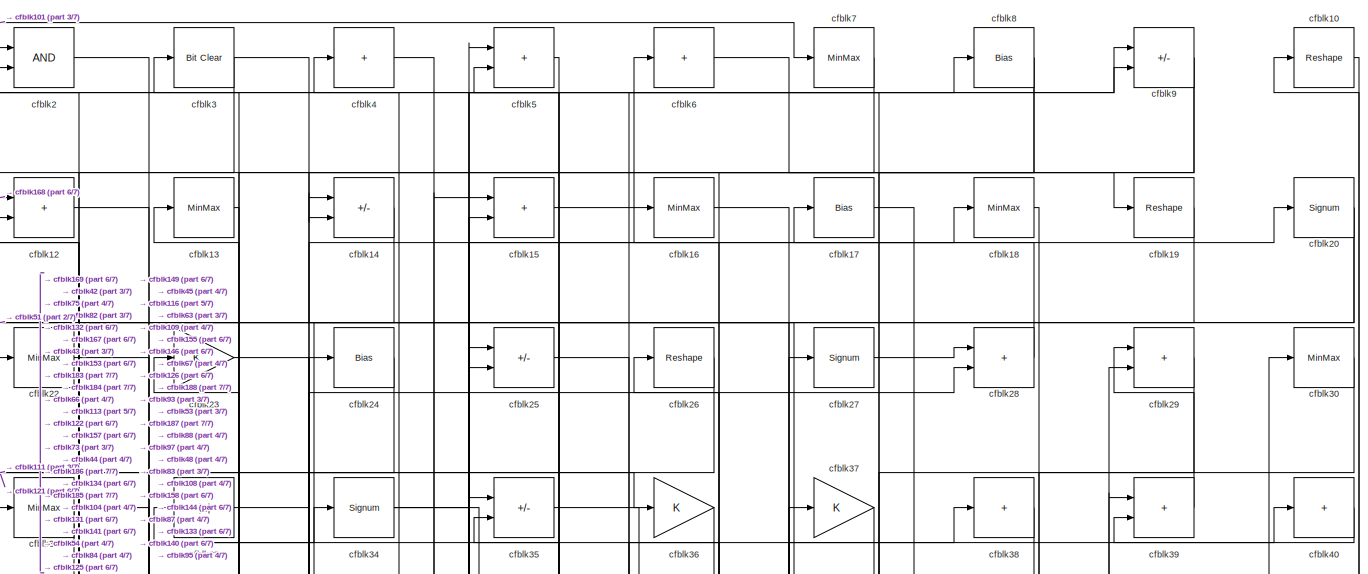
[diagram: root canvas - part 1/7, full width, top band]
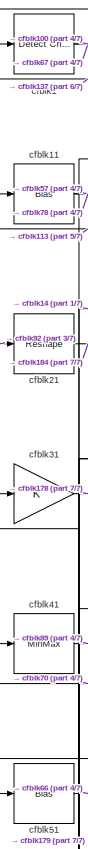
[diagram: root canvas - part 2/7, top left region]
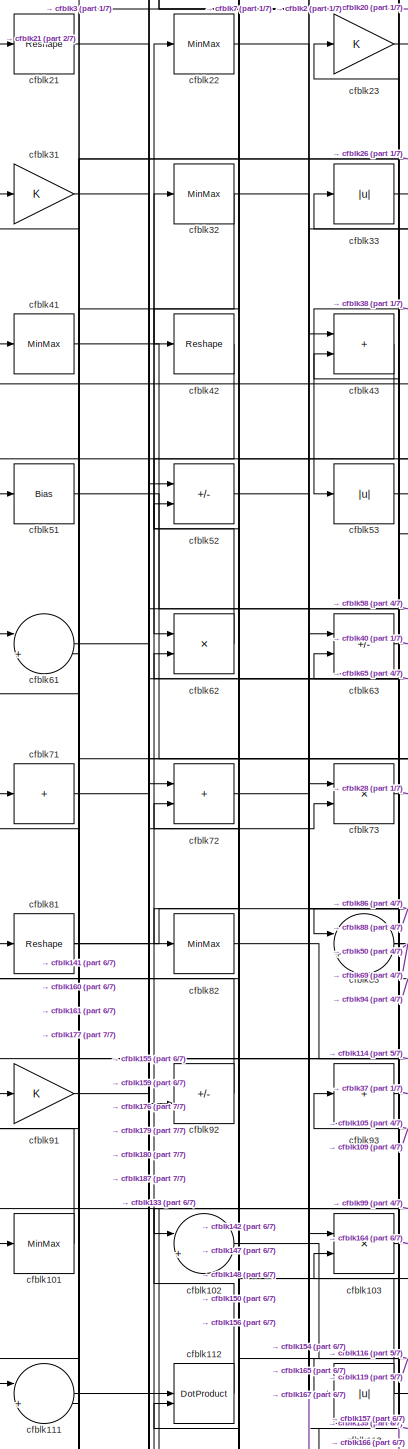
[diagram: root canvas - part 3/7, middle left region]
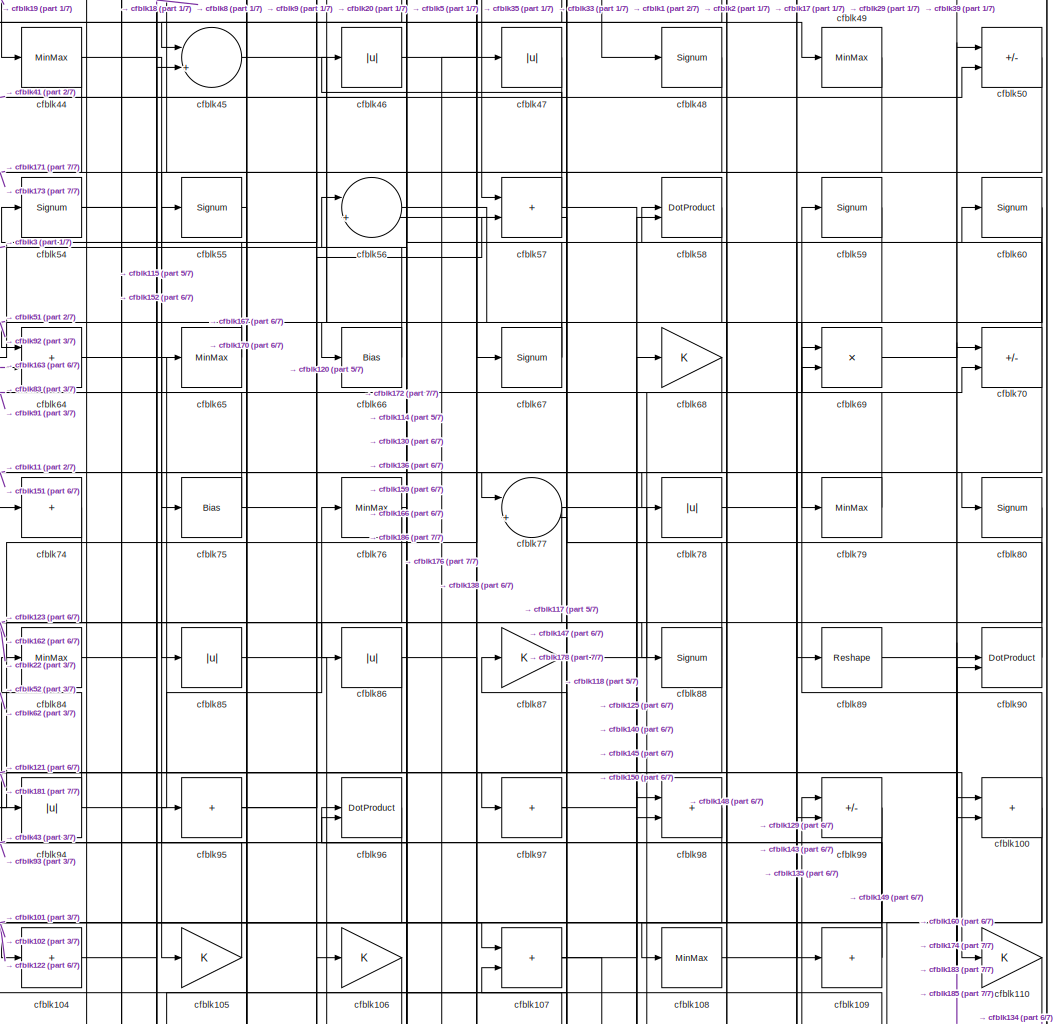
[diagram: root canvas - part 4/7, central region]
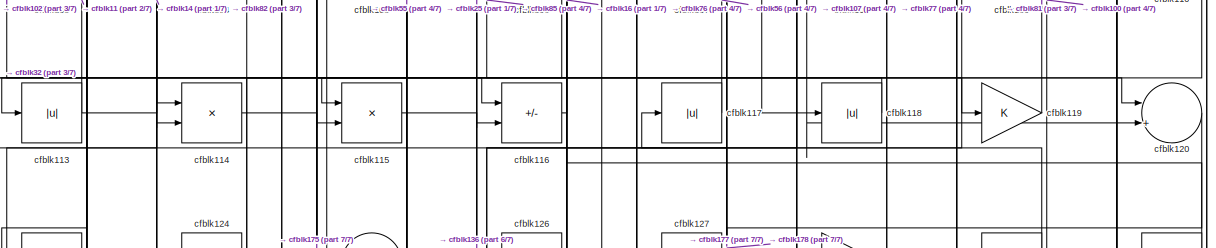
[diagram: root canvas - part 5/7, full width, middle band]
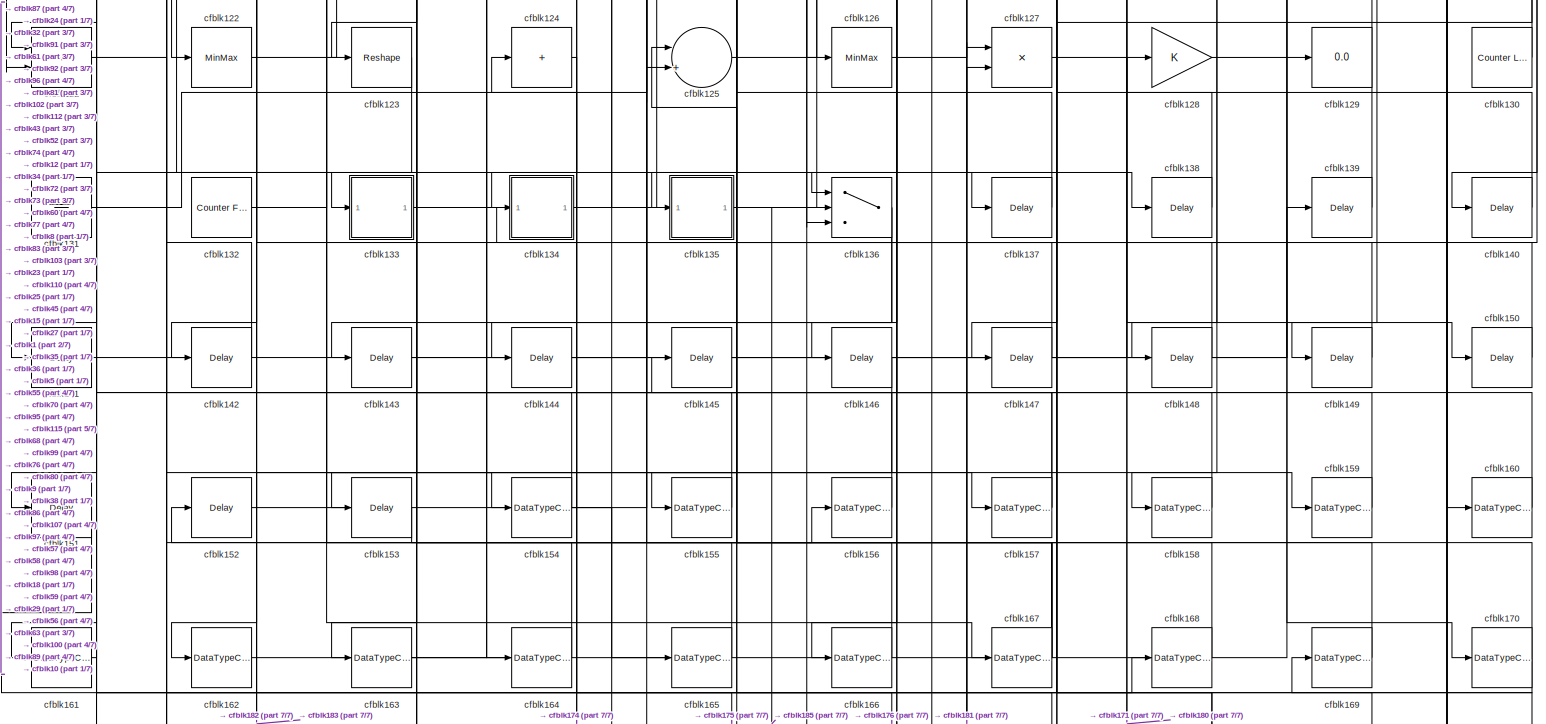
[diagram: root canvas - part 6/7, full width, bottom band]
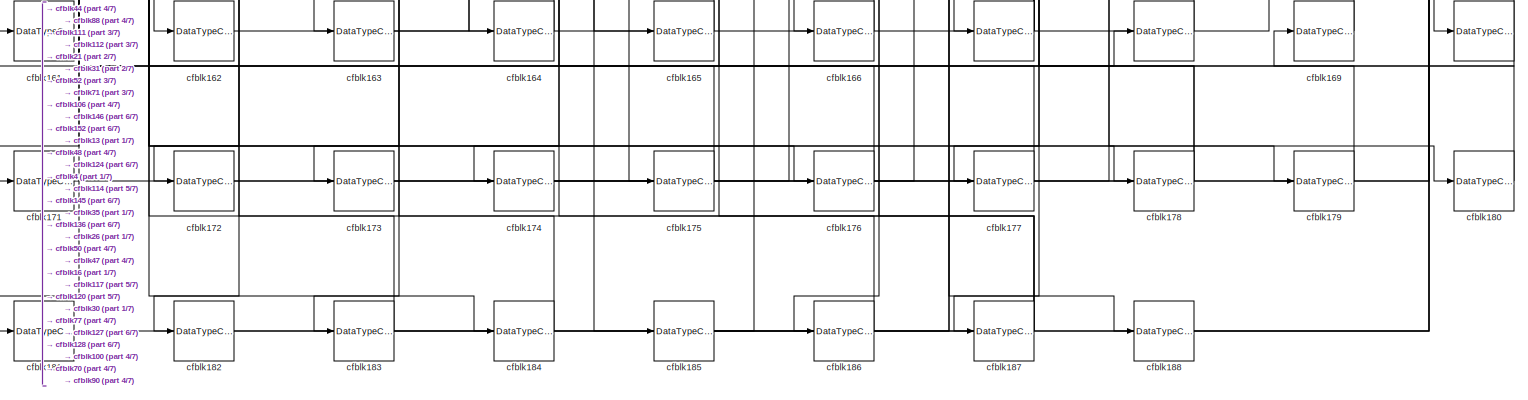
[diagram: root canvas - part 7/7, full width, bottom band]
MODEL slx_3adcf34a40bd
KIND model
CONFIG AbsTol = auto
CONFIG EnableMultiTasking = off
CONFIG FixedStep = auto
CONFIG MaxStep = auto
CONFIG MinStep = auto
CONFIG RelTol = 1e-3
CONFIG SampleTimeConstraint = Unconstrained
CONFIG SolverName = VariableStepAuto
CONFIG StartTime = 0.0
CONFIG StopTime = 10.0
BLOCK [Reference] cfblk1  REF=simulink/Logic and Bit
Operations/Detect
Change
  LibrarySourceBlock = hdlsllib/Logic and Bit\nOperations/Detect\nChange
  SourceBlock = simulink/Logic and Bit\nOperations/Detect\nChange
  SourceType = Detect Change
BLOCK [Reshape] cfblk10
BLOCK [Sum] cfblk100
  IconShape = rectangular
BLOCK [MinMax] cfblk101
BLOCK [Sum] cfblk102
  Inputs = |++
BLOCK [Product] cfblk103
  Inputs = */
  RndMeth = Zero
  SaturateOnIntegerOverflow = on
BLOCK [Sum] cfblk104
  IconShape = rectangular
  Inputs = +
BLOCK [Gain] cfblk105
BLOCK [Gain] cfblk106
BLOCK [Sum] cfblk107
  IconShape = rectangular
BLOCK [MinMax] cfblk108
BLOCK [Sum] cfblk109
  IconShape = rectangular
  Inputs = +
BLOCK [Bias] cfblk11
  Bias = 0.0
  SaturateOnIntegerOverflow = off
BLOCK [Gain] cfblk110
BLOCK [Sum] cfblk111
  Inputs = |++
BLOCK [DotProduct] cfblk112
  OutDataTypeStr = Inherit: Inherit via internal rule
BLOCK [Abs] cfblk113
  SaturateOnIntegerOverflow = off
BLOCK [Product] cfblk114
  Inputs = */
  RndMeth = Zero
  SaturateOnIntegerOverflow = on
BLOCK [Product] cfblk115
  Inputs = */
  RndMeth = Zero
  SaturateOnIntegerOverflow = on
BLOCK [Sum] cfblk116
  IconShape = rectangular
  Inputs = +-
BLOCK [Abs] cfblk117
  SaturateOnIntegerOverflow = off
BLOCK [Abs] cfblk118
  SaturateOnIntegerOverflow = off
BLOCK [Gain] cfblk119
BLOCK [Sum] cfblk12
  IconShape = rectangular
BLOCK [Sum] cfblk120
  Inputs = |++
BLOCK [Sum] cfblk121
  IconShape = rectangular
BLOCK [MinMax] cfblk122
BLOCK [Reshape] cfblk123
BLOCK [Sum] cfblk124
  IconShape = rectangular
  Inputs = +
BLOCK [Sum] cfblk125
  Inputs = |++
BLOCK [MinMax] cfblk126
BLOCK [Product] cfblk127
  Inputs = */
  RndMeth = Zero
  SaturateOnIntegerOverflow = on
BLOCK [Gain] cfblk128
BLOCK [Display] cfblk129
  Decimation = 1
BLOCK [MinMax] cfblk13
BLOCK [Reference] cfblk130  REF=hdlsllib/Sources/Counter
Limited
  SourceBlock = hdlsllib/Sources/Counter\nLimited
  SourceType = Counter Limited
BLOCK [Ground] cfblk131
BLOCK [Reference] cfblk132  REF=hdlsllib/Sources/Counter
Free-Running
  SourceBlock = hdlsllib/Sources/Counter\nFree-Running
  SourceType = Counter Free-Running
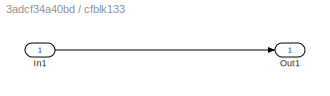
BLOCK [SubSystem] cfblk133
  LibrarySourceBlock = hdlsllib/Ports &\nSubsystems/Subsystem
BLOCK [Inport] cfblk133/In1
BLOCK [Outport] cfblk133/Out1
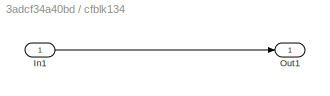
BLOCK [SubSystem] cfblk134
  LibrarySourceBlock = hdlsllib/Ports &\nSubsystems/Subsystem
BLOCK [Inport] cfblk134/In1
BLOCK [Outport] cfblk134/Out1
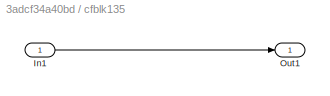
BLOCK [SubSystem] cfblk135
  LibrarySourceBlock = hdlsllib/Ports &\nSubsystems/Subsystem
BLOCK [Inport] cfblk135/In1
BLOCK [Outport] cfblk135/Out1
BLOCK [Switch] cfblk136
  InputSameDT = off
  SaturateOnIntegerOverflow = off
BLOCK [Delay] cfblk137
  InputPortMap = u0
  SampleTime = 1
BLOCK [Delay] cfblk138
  InputPortMap = u0
  SampleTime = 1
BLOCK [Delay] cfblk139
  InputPortMap = u0
  SampleTime = 1
BLOCK [Sum] cfblk14
  IconShape = rectangular
  Inputs = +-
BLOCK [Delay] cfblk140
  InputPortMap = u0
  SampleTime = 1
BLOCK [Delay] cfblk141
  InputPortMap = u0
  SampleTime = 1
BLOCK [Delay] cfblk142
  InputPortMap = u0
  SampleTime = 1
BLOCK [Delay] cfblk143
  InputPortMap = u0
  SampleTime = 1
BLOCK [Delay] cfblk144
  InputPortMap = u0
  SampleTime = 1
BLOCK [Delay] cfblk145
  InputPortMap = u0
  SampleTime = 1
BLOCK [Delay] cfblk146
  InputPortMap = u0
  SampleTime = 1
BLOCK [Delay] cfblk147
  InputPortMap = u0
  SampleTime = 1
BLOCK [Delay] cfblk148
  InputPortMap = u0
  SampleTime = 1
BLOCK [Delay] cfblk149
  InputPortMap = u0
  SampleTime = 1
BLOCK [Sum] cfblk15
  IconShape = rectangular
BLOCK [Delay] cfblk150
  InputPortMap = u0
  SampleTime = 1
BLOCK [Delay] cfblk151
  InputPortMap = u0
  SampleTime = 1
BLOCK [Delay] cfblk152
  InputPortMap = u0
  SampleTime = 1
BLOCK [Delay] cfblk153
  InputPortMap = u0
  SampleTime = 1
BLOCK [DataTypeConversion] cfblk154
  RndMeth = Floor
  SaturateOnIntegerOverflow = off
BLOCK [DataTypeConversion] cfblk155
  OutDataTypeStr = uint8
  RndMeth = Floor
  SaturateOnIntegerOverflow = off
BLOCK [DataTypeConversion] cfblk156
  OutDataTypeStr = uint8
  RndMeth = Floor
  SaturateOnIntegerOverflow = off
BLOCK [DataTypeConversion] cfblk157
  RndMeth = Floor
  SaturateOnIntegerOverflow = off
BLOCK [DataTypeConversion] cfblk158
  OutDataTypeStr = uint8
  RndMeth = Floor
  SaturateOnIntegerOverflow = off
BLOCK [DataTypeConversion] cfblk159
  OutDataTypeStr = uint8
  RndMeth = Floor
  SaturateOnIntegerOverflow = off
BLOCK [MinMax] cfblk16
BLOCK [DataTypeConversion] cfblk160
  OutDataTypeStr = uint8
  RndMeth = Floor
  SaturateOnIntegerOverflow = off
BLOCK [DataTypeConversion] cfblk161
  OutDataTypeStr = uint8
  RndMeth = Floor
  SaturateOnIntegerOverflow = off
BLOCK [DataTypeConversion] cfblk162
  OutDataTypeStr = uint8
  RndMeth = Floor
  SaturateOnIntegerOverflow = off
BLOCK [DataTypeConversion] cfblk163
  OutDataTypeStr = uint8
  RndMeth = Floor
  SaturateOnIntegerOverflow = off
BLOCK [DataTypeConversion] cfblk164
  OutDataTypeStr = uint8
  RndMeth = Floor
  SaturateOnIntegerOverflow = off
BLOCK [DataTypeConversion] cfblk165
  OutDataTypeStr = uint8
  RndMeth = Floor
  SaturateOnIntegerOverflow = off
BLOCK [DataTypeConversion] cfblk166
  OutDataTypeStr = uint8
  RndMeth = Floor
  SaturateOnIntegerOverflow = off
BLOCK [DataTypeConversion] cfblk167
  RndMeth = Floor
  SaturateOnIntegerOverflow = off
BLOCK [DataTypeConversion] cfblk168
  OutDataTypeStr = uint8
  RndMeth = Floor
  SaturateOnIntegerOverflow = off
BLOCK [DataTypeConversion] cfblk169
  OutDataTypeStr = uint8
  RndMeth = Floor
  SaturateOnIntegerOverflow = off
BLOCK [Bias] cfblk17
  Bias = 0.0
  SaturateOnIntegerOverflow = off
BLOCK [DataTypeConversion] cfblk170
  RndMeth = Floor
  SaturateOnIntegerOverflow = off
BLOCK [DataTypeConversion] cfblk171
  OutDataTypeStr = uint8
  RndMeth = Floor
  SaturateOnIntegerOverflow = off
BLOCK [DataTypeConversion] cfblk172
  OutDataTypeStr = uint8
  RndMeth = Floor
  SaturateOnIntegerOverflow = off
BLOCK [DataTypeConversion] cfblk173
  OutDataTypeStr = uint8
  RndMeth = Floor
  SaturateOnIntegerOverflow = off
BLOCK [DataTypeConversion] cfblk174
  OutDataTypeStr = uint8
  RndMeth = Floor
  SaturateOnIntegerOverflow = off
BLOCK [DataTypeConversion] cfblk175
  OutDataTypeStr = uint8
  RndMeth = Floor
  SaturateOnIntegerOverflow = off
BLOCK [DataTypeConversion] cfblk176
  RndMeth = Floor
  SaturateOnIntegerOverflow = off
BLOCK [DataTypeConversion] cfblk177
  OutDataTypeStr = uint8
  RndMeth = Floor
  SaturateOnIntegerOverflow = off
BLOCK [DataTypeConversion] cfblk178
  RndMeth = Floor
  SaturateOnIntegerOverflow = off
BLOCK [DataTypeConversion] cfblk179
  OutDataTypeStr = uint8
  RndMeth = Floor
  SaturateOnIntegerOverflow = off
BLOCK [MinMax] cfblk18
BLOCK [DataTypeConversion] cfblk180
  OutDataTypeStr = uint8
  RndMeth = Floor
  SaturateOnIntegerOverflow = off
BLOCK [DataTypeConversion] cfblk181
  OutDataTypeStr = uint8
  RndMeth = Floor
  SaturateOnIntegerOverflow = off
BLOCK [DataTypeConversion] cfblk182
  OutDataTypeStr = uint8
  RndMeth = Floor
  SaturateOnIntegerOverflow = off
BLOCK [DataTypeConversion] cfblk183
  RndMeth = Floor
  SaturateOnIntegerOverflow = off
BLOCK [DataTypeConversion] cfblk184
  OutDataTypeStr = uint8
  RndMeth = Floor
  SaturateOnIntegerOverflow = off
BLOCK [DataTypeConversion] cfblk185
  RndMeth = Floor
  SaturateOnIntegerOverflow = off
BLOCK [DataTypeConversion] cfblk186
  OutDataTypeStr = uint8
  RndMeth = Floor
  SaturateOnIntegerOverflow = off
BLOCK [DataTypeConversion] cfblk187
  RndMeth = Floor
  SaturateOnIntegerOverflow = off
BLOCK [DataTypeConversion] cfblk188
  OutDataTypeStr = uint8
  RndMeth = Floor
  SaturateOnIntegerOverflow = off
BLOCK [Reshape] cfblk19
BLOCK [Logic] cfblk2
  AllPortsSameDT = off
  OutDataTypeStr = boolean
BLOCK [Signum] cfblk20
BLOCK [Reshape] cfblk21
BLOCK [MinMax] cfblk22
BLOCK [Gain] cfblk23
BLOCK [Bias] cfblk24
  Bias = 0.0
  SaturateOnIntegerOverflow = off
BLOCK [Sum] cfblk25
  IconShape = rectangular
  Inputs = +-
BLOCK [Reshape] cfblk26
BLOCK [Signum] cfblk27
BLOCK [Sum] cfblk28
  IconShape = rectangular
BLOCK [Sum] cfblk29
  IconShape = rectangular
BLOCK [Reference] cfblk3  REF=simulink/Logic and Bit
Operations/Bit Clear
  LibrarySourceBlock = hdlsllib/Logic and Bit\nOperations/Bit Clear
  SourceBlock = simulink/Logic and Bit\nOperations/Bit Clear
  SourceType = Bit Clear
BLOCK [MinMax] cfblk30
BLOCK [Gain] cfblk31
BLOCK [MinMax] cfblk32
BLOCK [Abs] cfblk33
  SaturateOnIntegerOverflow = off
BLOCK [Signum] cfblk34
BLOCK [Sum] cfblk35
  IconShape = rectangular
  Inputs = +-
BLOCK [Gain] cfblk36
BLOCK [Gain] cfblk37
BLOCK [Sum] cfblk38
  IconShape = rectangular
  Inputs = +
BLOCK [Sum] cfblk39
  IconShape = rectangular
BLOCK [Sum] cfblk4
  IconShape = rectangular
  Inputs = +
BLOCK [Sum] cfblk40
  IconShape = rectangular
  Inputs = +
BLOCK [MinMax] cfblk41
BLOCK [Reshape] cfblk42
BLOCK [Sum] cfblk43
  IconShape = rectangular
BLOCK [MinMax] cfblk44
BLOCK [Sum] cfblk45
  Inputs = |++
BLOCK [Abs] cfblk46
  SaturateOnIntegerOverflow = off
BLOCK [Abs] cfblk47
  SaturateOnIntegerOverflow = off
BLOCK [Signum] cfblk48
BLOCK [MinMax] cfblk49
BLOCK [Sum] cfblk5
  IconShape = rectangular
BLOCK [Sum] cfblk50
  IconShape = rectangular
  Inputs = +-
BLOCK [Bias] cfblk51
  Bias = 0.0
  SaturateOnIntegerOverflow = off
BLOCK [Sum] cfblk52
  IconShape = rectangular
  Inputs = +-
BLOCK [Abs] cfblk53
  SaturateOnIntegerOverflow = off
BLOCK [Signum] cfblk54
BLOCK [Signum] cfblk55
BLOCK [Sum] cfblk56
  Inputs = |++
BLOCK [Sum] cfblk57
  IconShape = rectangular
BLOCK [DotProduct] cfblk58
  OutDataTypeStr = Inherit: Inherit via internal rule
BLOCK [Signum] cfblk59
BLOCK [Sum] cfblk6
  IconShape = rectangular
  Inputs = +
BLOCK [Signum] cfblk60
BLOCK [Sum] cfblk61
  Inputs = |++
BLOCK [Product] cfblk62
  Inputs = */
  RndMeth = Zero
  SaturateOnIntegerOverflow = on
BLOCK [Sum] cfblk63
  IconShape = rectangular
  Inputs = +-
BLOCK [Sum] cfblk64
  IconShape = rectangular
BLOCK [MinMax] cfblk65
BLOCK [Bias] cfblk66
  Bias = 0.0
  SaturateOnIntegerOverflow = off
BLOCK [Signum] cfblk67
BLOCK [Gain] cfblk68
BLOCK [Product] cfblk69
  Inputs = */
  RndMeth = Zero
  SaturateOnIntegerOverflow = on
BLOCK [MinMax] cfblk7
BLOCK [Sum] cfblk70
  IconShape = rectangular
  Inputs = +-
BLOCK [Sum] cfblk71
  IconShape = rectangular
  Inputs = +
BLOCK [Sum] cfblk72
  IconShape = rectangular
BLOCK [Product] cfblk73
  Inputs = */
  RndMeth = Zero
  SaturateOnIntegerOverflow = on
BLOCK [Sum] cfblk74
  IconShape = rectangular
  Inputs = +
BLOCK [Bias] cfblk75
  Bias = 0.0
  SaturateOnIntegerOverflow = off
BLOCK [MinMax] cfblk76
BLOCK [Sum] cfblk77
  Inputs = |++
BLOCK [Abs] cfblk78
  SaturateOnIntegerOverflow = off
BLOCK [MinMax] cfblk79
BLOCK [Bias] cfblk8
  Bias = 0.0
  SaturateOnIntegerOverflow = off
BLOCK [Signum] cfblk80
BLOCK [Reshape] cfblk81
BLOCK [MinMax] cfblk82
BLOCK [Sum] cfblk83
  Inputs = |++
BLOCK [MinMax] cfblk84
BLOCK [Abs] cfblk85
  SaturateOnIntegerOverflow = off
BLOCK [Abs] cfblk86
  SaturateOnIntegerOverflow = off
BLOCK [Gain] cfblk87
BLOCK [Signum] cfblk88
BLOCK [Reshape] cfblk89
BLOCK [Sum] cfblk9
  IconShape = rectangular
  Inputs = +-
BLOCK [DotProduct] cfblk90
  OutDataTypeStr = Inherit: Inherit via internal rule
BLOCK [Gain] cfblk91
BLOCK [Sum] cfblk92
  IconShape = rectangular
  Inputs = +-
BLOCK [Sum] cfblk93
  IconShape = rectangular
  Inputs = +
BLOCK [Abs] cfblk94
  SaturateOnIntegerOverflow = off
BLOCK [Sum] cfblk95
  IconShape = rectangular
  Inputs = +
BLOCK [DotProduct] cfblk96
  OutDataTypeStr = Inherit: Inherit via internal rule
BLOCK [Sum] cfblk97
  IconShape = rectangular
  Inputs = +
BLOCK [Sum] cfblk98
  IconShape = rectangular
BLOCK [Sum] cfblk99
  IconShape = rectangular
  Inputs = +-
NET cfblk100:1 -> cfblk115:2, cfblk149:1, cfblk59:1
LINE cfblk101:1 -> cfblk7:1
LINE cfblk102:1 -> cfblk116:1
LINE cfblk103:1 -> cfblk164:1
LINE cfblk104:1 -> cfblk18:1
LINE cfblk105:1 -> cfblk93:1
LINE cfblk106:1 -> cfblk172:1
NET cfblk107:1 -> cfblk118:1, cfblk87:1, cfblk98:2
LINE cfblk108:1 -> cfblk60:1
NET cfblk109:1 -> cfblk43:2, cfblk84:1
LINE cfblk10:1 -> cfblk140:1
LINE cfblk110:1 -> cfblk134:1
LINE cfblk111:1 -> cfblk179:1
LINE cfblk112:1 -> cfblk22:1
NET cfblk113:1 -> cfblk11:1, cfblk14:1
LINE cfblk114:1 -> cfblk175:1
LINE cfblk115:1 -> cfblk136:3
LINE cfblk116:1 -> cfblk16:1
LINE cfblk117:1 -> cfblk56:1
LINE cfblk118:1 -> cfblk113:1
LINE cfblk119:1 -> cfblk81:1
NET cfblk11:1 -> cfblk57:1, cfblk78:1
LINE cfblk120:1 -> cfblk177:1
LINE cfblk121:1 -> cfblk137:1
LINE cfblk122:1 -> cfblk24:1
LINE cfblk123:1 -> cfblk161:1
LINE cfblk124:1 -> cfblk174:1
LINE cfblk125:1 -> cfblk68:1
LINE cfblk126:1 -> cfblk38:1
LINE cfblk127:1 -> cfblk180:1
LINE cfblk128:1 -> cfblk170:1
LINE cfblk12:1 -> cfblk167:1
LINE cfblk130:1 -> cfblk96:1
LINE cfblk131:1 -> cfblk25:1
LINE cfblk132:1 -> cfblk34:1
LINE cfblk133/In1:1 -> cfblk133/Out1:1
LINE cfblk133:1 -> cfblk10:1
LINE cfblk134/In1:1 -> cfblk134/Out1:1
NET cfblk134:1 -> cfblk15:1, cfblk27:1
LINE cfblk135/In1:1 -> cfblk135/Out1:1
LINE cfblk135:1 -> cfblk99:1
NET cfblk136:1 -> cfblk143:1, cfblk144:1
LINE cfblk137:1 -> cfblk1:1
LINE cfblk138:1 -> cfblk107:2
LINE cfblk139:1 -> cfblk63:1
LINE cfblk13:1 -> cfblk183:1
LINE cfblk140:1 -> cfblk98:1
LINE cfblk141:1 -> cfblk15:2
LINE cfblk142:1 -> cfblk92:1
LINE cfblk143:1 -> cfblk99:2
LINE cfblk144:1 -> cfblk29:2
LINE cfblk145:1 -> cfblk58:2
LINE cfblk146:1 -> cfblk182:1
LINE cfblk147:1 -> cfblk102:2
LINE cfblk148:1 -> cfblk112:2
LINE cfblk149:1 -> cfblk5:2
LINE cfblk14:1 -> cfblk51:1
LINE cfblk150:1 -> cfblk52:2
LINE cfblk151:1 -> cfblk168:1
LINE cfblk152:1 -> cfblk45:2
LINE cfblk153:1 -> cfblk156:1
NET cfblk154:1 -> cfblk165:1, cfblk91:1
LINE cfblk155:1 -> cfblk72:1
LINE cfblk156:1 -> cfblk72:2
NET cfblk157:1 -> cfblk5:1, cfblk83:2
LINE cfblk158:1 -> cfblk23:1
LINE cfblk159:1 -> cfblk96:2
LINE cfblk15:1 -> cfblk6:1
LINE cfblk160:1 -> cfblk61:1
LINE cfblk161:1 -> cfblk61:2
LINE cfblk162:1 -> cfblk139:1
LINE cfblk163:1 -> cfblk74:1
LINE cfblk164:1 -> cfblk63:2
LINE cfblk165:1 -> cfblk103:1
LINE cfblk166:1 -> cfblk103:2
NET cfblk167:1 -> cfblk125:1, cfblk35:1, cfblk73:1, cfblk95:1
LINE cfblk168:1 -> cfblk12:1
LINE cfblk169:1 -> cfblk12:2
LINE cfblk16:1 -> cfblk188:1
NET cfblk170:1 -> cfblk169:1, cfblk55:1
LINE cfblk171:1 -> cfblk128:1
LINE cfblk172:1 -> cfblk90:1
LINE cfblk173:1 -> cfblk106:1
LINE cfblk174:1 -> cfblk90:2
LINE cfblk175:1 -> cfblk124:1
NET cfblk176:1 -> cfblk145:1, cfblk47:1
LINE cfblk177:1 -> cfblk71:1
NET cfblk178:1 -> cfblk117:1, cfblk77:2
LINE cfblk179:1 -> cfblk31:1
LINE cfblk17:1 -> cfblk48:1
LINE cfblk180:1 -> cfblk112:1
LINE cfblk181:1 -> cfblk127:1
LINE cfblk182:1 -> cfblk127:2
NET cfblk183:1 -> cfblk152:1, cfblk70:1
LINE cfblk184:1 -> cfblk13:1
NET cfblk185:1 -> cfblk100:1, cfblk136:2
LINE cfblk186:1 -> cfblk4:1
NET cfblk187:1 -> cfblk26:1, cfblk35:2, cfblk52:1
LINE cfblk188:1 -> cfblk30:1
LINE cfblk18:1 -> cfblk158:1
LINE cfblk19:1 -> cfblk44:1
NET cfblk1:1 -> cfblk100:2, cfblk67:1
NET cfblk20:1 -> cfblk42:1, cfblk75:1
LINE cfblk21:1 -> cfblk184:1
LINE cfblk22:1 -> cfblk86:1
LINE cfblk23:1 -> cfblk157:1
LINE cfblk24:1 -> cfblk121:1
LINE cfblk25:1 -> cfblk116:2
LINE cfblk26:1 -> cfblk111:1
LINE cfblk27:1 -> cfblk28:1
LINE cfblk28:1 -> cfblk17:1
LINE cfblk29:1 -> cfblk108:1
LINE cfblk2:1 -> cfblk43:1
LINE cfblk30:1 -> cfblk187:1
LINE cfblk31:1 -> cfblk178:1
NET cfblk32:1 -> cfblk119:1, cfblk141:1
LINE cfblk33:1 -> cfblk36:1
NET cfblk34:1 -> cfblk125:2, cfblk126:1
LINE cfblk35:1 -> cfblk109:1
LINE cfblk36:1 -> cfblk155:1
LINE cfblk37:1 -> cfblk53:1
LINE cfblk38:1 -> cfblk83:1
LINE cfblk39:1 -> cfblk29:1
NET cfblk3:1 -> cfblk111:2, cfblk25:2
LINE cfblk40:1 -> cfblk39:2
LINE cfblk41:1 -> cfblk89:1
LINE cfblk42:1 -> cfblk62:1
LINE cfblk43:1 -> cfblk142:1
NET cfblk44:1 -> cfblk171:1, cfblk85:1
LINE cfblk45:1 -> cfblk79:1
LINE cfblk46:1 -> cfblk49:1
LINE cfblk47:1 -> cfblk105:1
LINE cfblk48:1 -> cfblk173:1
LINE cfblk49:1 -> cfblk77:1
LINE cfblk4:1 -> cfblk185:1
LINE cfblk50:1 -> cfblk186:1
LINE cfblk51:1 -> cfblk66:1
LINE cfblk52:1 -> cfblk88:1
LINE cfblk53:1 -> cfblk20:1
NET cfblk54:1 -> cfblk107:1, cfblk8:1
LINE cfblk55:1 -> cfblk115:1
LINE cfblk56:1 -> cfblk129:1
NET cfblk57:1 -> cfblk150:1, cfblk46:1
LINE cfblk58:1 -> cfblk92:2
LINE cfblk59:1 -> cfblk148:1
LINE cfblk5:1 -> cfblk45:1
NET cfblk60:1 -> cfblk163:1, cfblk64:2
LINE cfblk61:1 -> cfblk159:1
LINE cfblk62:1 -> cfblk32:1
LINE cfblk63:1 -> cfblk40:1
LINE cfblk64:1 -> cfblk110:1
LINE cfblk65:1 -> cfblk54:1
LINE cfblk66:1 -> cfblk3:1
NET cfblk67:1 -> cfblk33:1, cfblk64:1
LINE cfblk68:1 -> cfblk151:1
LINE cfblk69:1 -> cfblk50:1
LINE cfblk6:1 -> cfblk19:1
NET cfblk70:1 -> cfblk135:1, cfblk41:1
LINE cfblk71:1 -> cfblk176:1
LINE cfblk72:1 -> cfblk154:1
LINE cfblk73:1 -> cfblk28:2
LINE cfblk74:1 -> cfblk162:1
NET cfblk75:1 -> cfblk2:1, cfblk80:1
NET cfblk76:1 -> cfblk114:2, cfblk166:1
NET cfblk77:1 -> cfblk120:2, cfblk123:1
LINE cfblk78:1 -> cfblk70:2
LINE cfblk79:1 -> cfblk58:1
LINE cfblk7:1 -> cfblk82:1
LINE cfblk80:1 -> cfblk136:1
NET cfblk81:1 -> cfblk133:1, cfblk73:2
LINE cfblk82:1 -> cfblk114:1
NET cfblk83:1 -> cfblk50:2, cfblk69:1
LINE cfblk84:1 -> cfblk9:1
LINE cfblk85:1 -> cfblk120:1
NET cfblk86:1 -> cfblk138:1, cfblk94:1
NET cfblk87:1 -> cfblk121:2, cfblk39:1
NET cfblk88:1 -> cfblk181:1, cfblk2:2
LINE cfblk89:1 -> cfblk160:1
NET cfblk8:1 -> cfblk14:2, cfblk153:1
LINE cfblk90:1 -> cfblk56:2
LINE cfblk91:1 -> cfblk65:1
LINE cfblk92:1 -> cfblk21:1
LINE cfblk93:1 -> cfblk37:1
NET cfblk94:1 -> cfblk62:2, cfblk76:1
NET cfblk95:1 -> cfblk57:2, cfblk9:2
LINE cfblk96:1 -> cfblk122:1
NET cfblk97:1 -> cfblk147:1, cfblk69:2
LINE cfblk98:1 -> cfblk104:1
NET cfblk99:1 -> cfblk101:1, cfblk102:1
NET cfblk9:1 -> cfblk146:1, cfblk97:1
note: NET lines group one-source signal fan-out (src -> all destinations, sorted); 1:1 wires keep LINE
